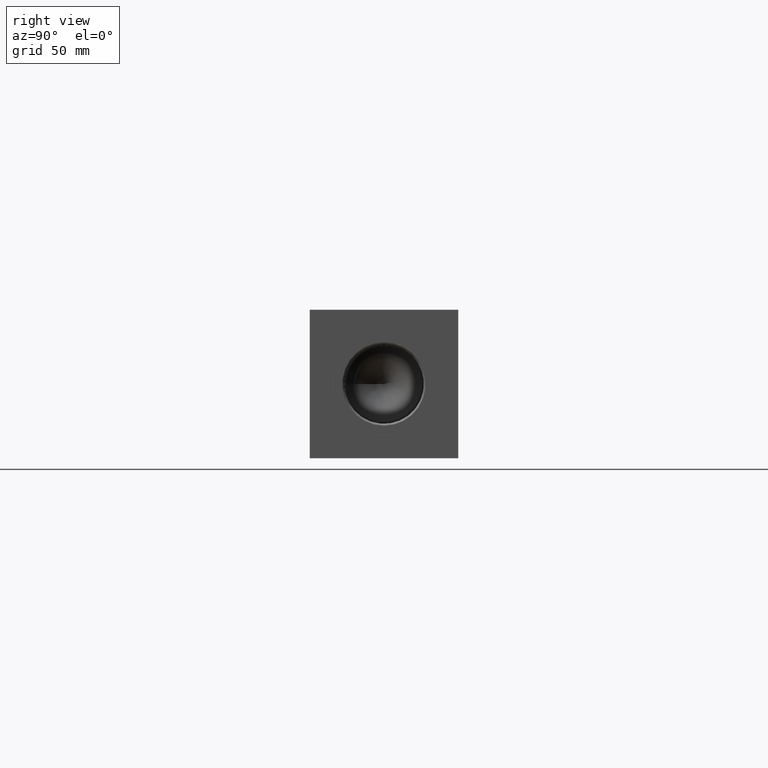
[diagram: clean part render]
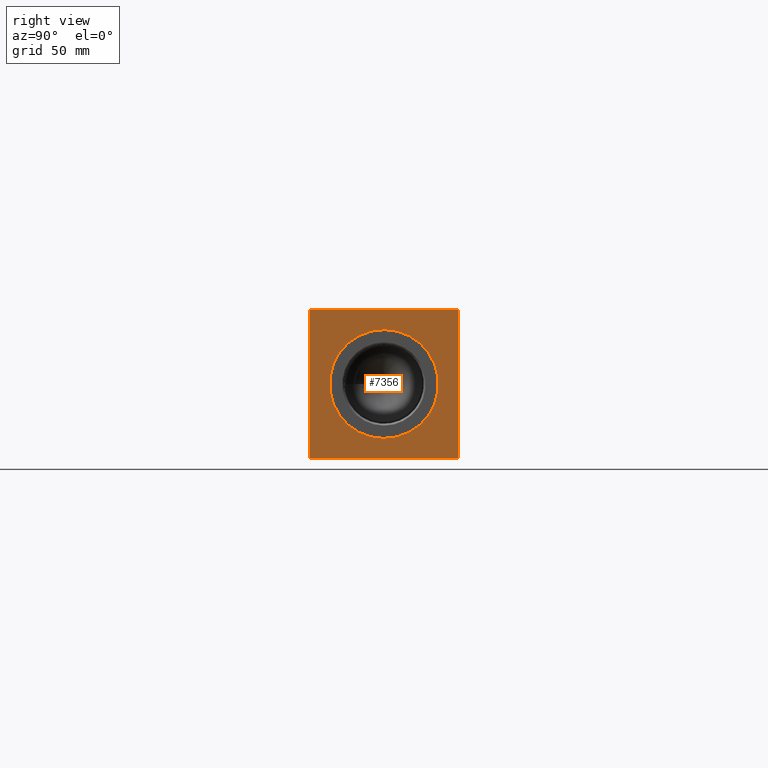
[diagram: same view with one face highlighted and labeled with its STEP entity id]
A machine part, right view. The second image highlights one B-rep face of the part: STEP entity #7356.
In plain terms, the highlighted planar face has unit normal (1, 0, 0).
Its self-contained STEP definition (entity closure, byte-faithful):
#108=CIRCLE('',#7625,32.5628);
#109=CIRCLE('',#7626,32.5628);
#249=FACE_BOUND('',#1341,.T.);
#913=FACE_OUTER_BOUND('',#1340,.T.);
#1340=EDGE_LOOP('',(#6444,#6445,#6446,#6447));
#1341=EDGE_LOOP('',(#6448,#6449));
#1599=LINE('',#11294,#2297);
#2043=LINE('',#12600,#2741);
#2044=LINE('',#12603,#2742);
#2045=LINE('',#12604,#2743);
#2297=VECTOR('',#8165,10.);
#2741=VECTOR('',#9289,10.);
#2742=VECTOR('',#9292,10.);
#2743=VECTOR('',#9293,10.);
#3028=VERTEX_POINT('',#11291);
#3029=VERTEX_POINT('',#11293);
#3324=VERTEX_POINT('',#12292);
#3325=VERTEX_POINT('',#12293);
#3423=VERTEX_POINT('',#12598);
#3424=VERTEX_POINT('',#12602);
#3849=EDGE_CURVE('',#3028,#3029,#1599,.T.);
#4289=EDGE_CURVE('',#3324,#3325,#108,.T.);
#4290=EDGE_CURVE('',#3325,#3324,#109,.T.);
#4435=EDGE_CURVE('',#3423,#3029,#2043,.T.);
#4436=EDGE_CURVE('',#3424,#3423,#2044,.T.);
#4437=EDGE_CURVE('',#3424,#3028,#2045,.T.);
#6444=ORIENTED_EDGE('',*,*,#4436,.T.);
#6445=ORIENTED_EDGE('',*,*,#4435,.T.);
#6446=ORIENTED_EDGE('',*,*,#3849,.F.);
#6447=ORIENTED_EDGE('',*,*,#4437,.F.);
#6448=ORIENTED_EDGE('',*,*,#4289,.T.);
#6449=ORIENTED_EDGE('',*,*,#4290,.T.);
#6686=PLANE('',#7779);
#7356=ADVANCED_FACE('',(#913,#249),#6686,.T.);
#7625=AXIS2_PLACEMENT_3D('',#12294,#8927,#8928);
#7626=AXIS2_PLACEMENT_3D('',#12295,#8929,#8930);
#7779=AXIS2_PLACEMENT_3D('',#12601,#9290,#9291);
#8165=DIRECTION('',(0.,1.,0.));
#8927=DIRECTION('center_axis',(-1.,0.,0.));
#8928=DIRECTION('ref_axis',(0.,0.,-1.));
#8929=DIRECTION('center_axis',(-1.,0.,0.));
#8930=DIRECTION('ref_axis',(0.,0.,-1.));
#9289=DIRECTION('',(0.,0.,1.));
#9290=DIRECTION('center_axis',(1.,0.,0.));
#9291=DIRECTION('ref_axis',(0.,1.,0.));
#9292=DIRECTION('',(0.,1.,0.));
#9293=DIRECTION('',(0.,0.,1.));
#11291=CARTESIAN_POINT('',(419.1,0.,88.9));
#11293=CARTESIAN_POINT('',(419.1,88.9,88.9));
#11294=CARTESIAN_POINT('',(419.1,0.,88.9));
#12292=CARTESIAN_POINT('',(419.1,44.45,11.8872));
#12293=CARTESIAN_POINT('',(419.1,44.45,77.0128));
#12294=CARTESIAN_POINT('Origin',(419.1,44.45,44.45));
#12295=CARTESIAN_POINT('Origin',(419.1,44.45,44.45));
#12598=CARTESIAN_POINT('',(419.1,88.9,0.));
#12600=CARTESIAN_POINT('',(419.1,88.9,0.));
#12601=CARTESIAN_POINT('Origin',(419.1,0.,0.));
#12602=CARTESIAN_POINT('',(419.1,0.,0.));
#12603=CARTESIAN_POINT('',(419.1,0.,0.));
#12604=CARTESIAN_POINT('',(419.1,0.,0.));